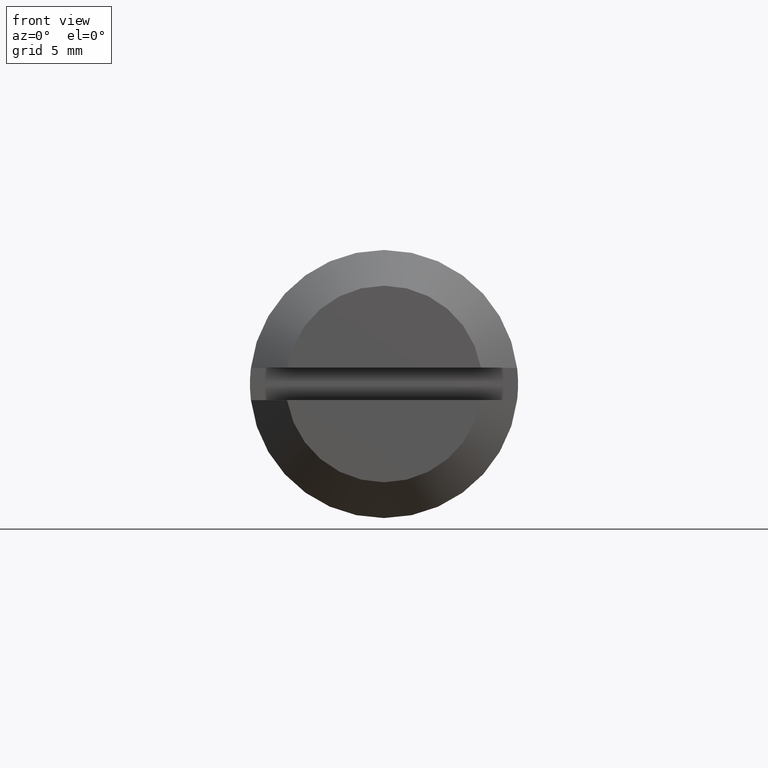
[diagram: clean part render]
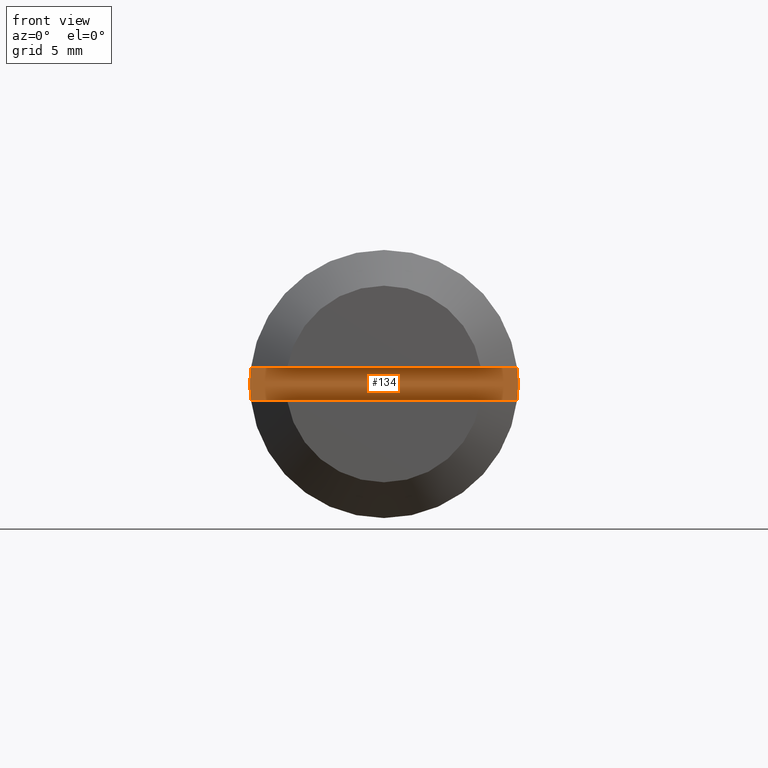
[diagram: same view with one face highlighted and labeled with its STEP entity id]
A machine part, front view. The second image highlights one B-rep face of the part: STEP entity #134.
In plain terms, the highlighted planar face has unit normal (0, -1, 0).
Its self-contained STEP definition (entity closure, byte-faithful):
#134=ADVANCED_FACE('',(#377),#376,.T.);
#376=PLANE('',#700);
#377=FACE_OUTER_BOUND('',#701,.T.);
#697=CARTESIAN_POINT('',(-7.99990000000E+00,-9.06550834529E+00,-1.08000000000E+00));
#698=DIRECTION('',(-1.00000000000E+00,0.00000000000E+00,0.00000000000E+00));
#699=DIRECTION('',(0.00000000000E+00,0.00000000000E+00,1.00000000000E+00));
#700=AXIS2_PLACEMENT_3D('',#697,#698,#699);
#701=EDGE_LOOP('',(#947,#948,#949,#950));
#947=ORIENTED_EDGE('',*,*,#1087,.F.);
#948=ORIENTED_EDGE('',*,*,#1088,.F.);
#949=ORIENTED_EDGE('',*,*,#1085,.T.);
#950=ORIENTED_EDGE('',*,*,#1089,.F.);
#1085=EDGE_CURVE('',#1485,#1492,#1519,.T.);
#1087=EDGE_CURVE('',#1531,#1532,#1533,.T.);
#1088=EDGE_CURVE('',#1485,#1531,#1539,.T.);
#1089=EDGE_CURVE('',#1532,#1492,#1545,.T.);
#1485=VERTEX_POINT('',#1992);
#1492=VERTEX_POINT('',#1997);
#1519=LINE('',#2016,#2017);
#1531=VERTEX_POINT('',#2022);
#1532=VERTEX_POINT('',#2023);
#1533=LINE('',#2024,#2025);
#1539=CIRCLE('',#2030,7.50000000000E+00);
#1545=CIRCLE('',#2034,7.50000000000E+00);
#1992=CARTESIAN_POINT('',(-7.99990000000E+00,7.44580418759E+00,-9.00000000000E-01));
#1997=CARTESIAN_POINT('',(-7.99990000000E+00,-7.44580418759E+00,-9.00000000000E-01));
#2016=CARTESIAN_POINT('',(-7.99990000000E+00,7.44580418759E+00,-9.00000000000E-01));
#2017=VECTOR('',#2018,1.48916083752E+01);
#2018=DIRECTION('',(0.00000000000E+00,-1.00000000000E+00,0.00000000000E+00));
#2022=CARTESIAN_POINT('',(-7.99990000000E+00,7.44580418759E+00,9.00000000000E-01));
#2023=CARTESIAN_POINT('',(-7.99990000000E+00,-7.44580418759E+00,9.00000000000E-01));
#2024=CARTESIAN_POINT('',(-7.99990000000E+00,7.44580418759E+00,9.00000000000E-01));
#2025=VECTOR('',#2026,1.48916083752E+01);
#2026=DIRECTION('',(0.00000000000E+00,-1.00000000000E+00,0.00000000000E+00));
#2027=CARTESIAN_POINT('',(-7.99990000000E+00,0.00000000000E+00,0.00000000000E+00));
#2028=DIRECTION('',(1.00000000000E+00,0.00000000000E+00,-0.00000000000E+00));
#2029=DIRECTION('',(-0.00000000000E+00,-0.00000000000E+00,-1.00000000000E+00));
#2030=AXIS2_PLACEMENT_3D('',#2027,#2028,#2029);
#2031=CARTESIAN_POINT('',(-7.99990000000E+00,0.00000000000E+00,0.00000000000E+00));
#2032=DIRECTION('',(1.00000000000E+00,0.00000000000E+00,-0.00000000000E+00));
#2033=DIRECTION('',(-0.00000000000E+00,-0.00000000000E+00,-1.00000000000E+00));
#2034=AXIS2_PLACEMENT_3D('',#2031,#2032,#2033);